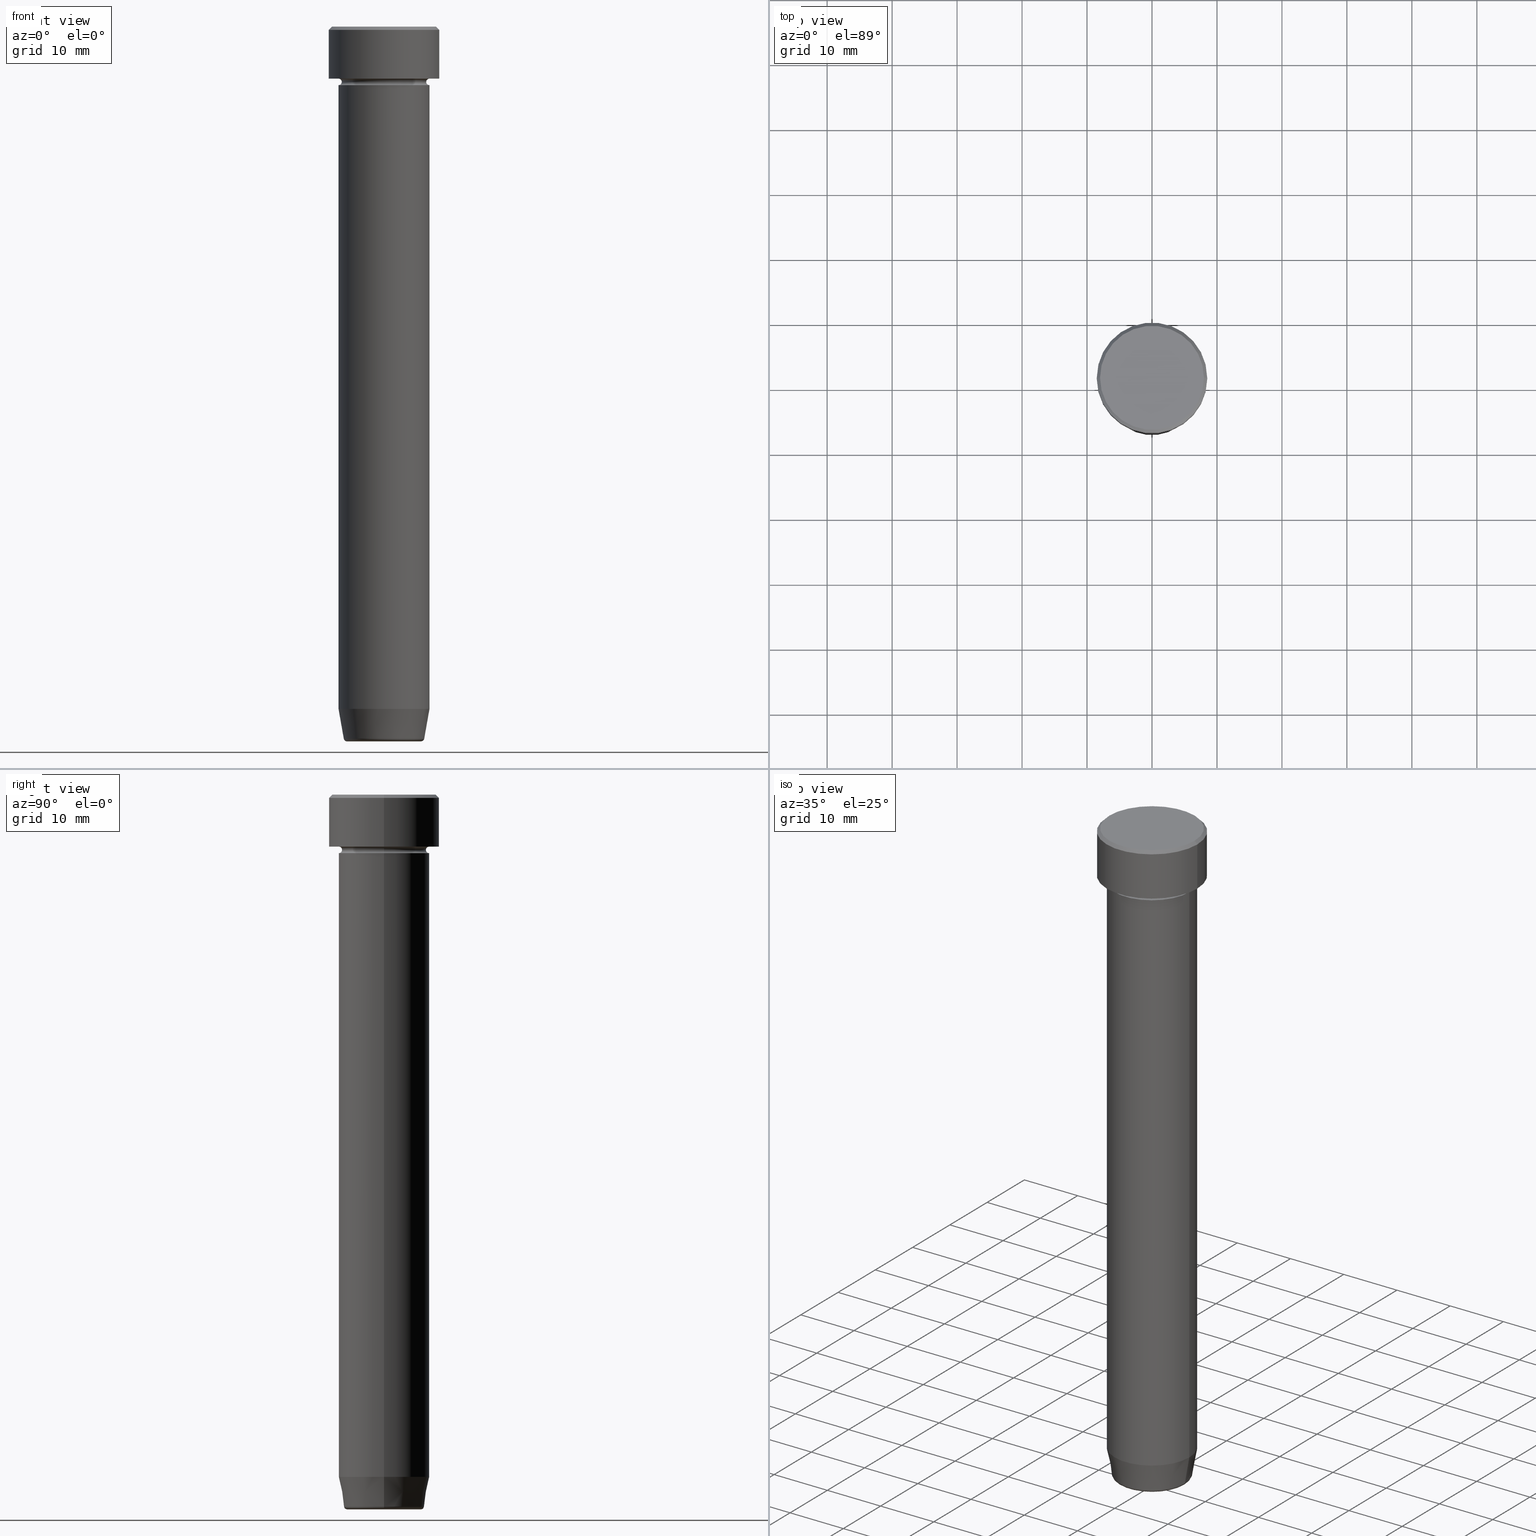
[diagram: canonical four-view strip — front | top / right | iso, engineering-drawing reading convention]
A machine part, canonical four-view strip (front | top / right | iso — engineering-drawing reading convention). The complete STEP part file that produces these views, byte-faithful:
ISO-10303-21;
HEADER;
FILE_DESCRIPTION (( 'STEP AP203' ),
    '1' );
FILE_NAME ('8b41.STEP',
    '2024-01-02T23:19:57',
    ( '' ),
    ( '' ),
    'SwSTEP 2.0',
    'SolidWorks 2019',
    '' );
FILE_SCHEMA (( 'CONFIG_CONTROL_DESIGN' ));
ENDSEC;

DATA;
#1 = FACE_OUTER_BOUND ( 'NONE', #95, .T. ) ;
#2 = ORIENTED_EDGE ( 'NONE', *, *, #486, .F. ) ;
#3 = EDGE_CURVE ( 'NONE', #456, #457, #16, .T. ) ;
#4 = ORIENTED_EDGE ( 'NONE', *, *, #570, .T. ) ;
#5 = DIRECTION ( 'NONE',  ( 0.7071067811865487940, 8.659560562354950115E-17, -0.7071067811865463515 ) ) ;
#6 = AXIS2_PLACEMENT_3D ( 'NONE', #571, #104, #108 ) ;
#7 = DIRECTION ( 'NONE',  ( -1.000000000000000000, 0.000000000000000000, 0.000000000000000000 ) ) ;
#8 = ORIENTED_EDGE ( 'NONE', *, *, #96, .F. ) ;
#9 = LINE ( 'NONE', #239, #18 ) ;
#10 = DIRECTION ( 'NONE',  ( 1.000000000000000000, 0.000000000000000000, 0.000000000000000000 ) ) ;
#11 = FACE_OUTER_BOUND ( 'NONE', #311, .T. ) ;
#12 = DIRECTION ( 'NONE',  ( -1.000000000000000000, 0.000000000000000000, 0.000000000000000000 ) ) ;
#13 = CARTESIAN_POINT ( 'NONE',  ( 0.000000000000000000, 0.000000000000000000, -109.9999999999999858 ) ) ;
#14 = EDGE_CURVE ( 'NONE', #87, #423, #515, .T. ) ;
#15 = DIRECTION ( 'NONE',  ( 1.000000000000000000, 0.000000000000000000, 0.000000000000000000 ) ) ;
#16 = CIRCLE ( 'NONE', #176, 6.999999999999999112 ) ;
#17 = EDGE_LOOP ( 'NONE', ( #340, #322, #542, #75 ) ) ;
#18 = VECTOR ( 'NONE', #145, 1000.000000000000000 ) ;
#19 = ORIENTED_EDGE ( 'NONE', *, *, #81, .T. ) ;
#20 = CARTESIAN_POINT ( 'NONE',  ( 0.000000000000000000, 0.000000000000000000, -109.4999999999999858 ) ) ;
#21 = DIRECTION ( 'NONE',  ( -1.000000000000000000, 0.000000000000000000, -0.000000000000000000 ) ) ;
#22 = FACE_OUTER_BOUND ( 'NONE', #452, .T. ) ;
#23 = ORIENTED_EDGE ( 'NONE', *, *, #181, .T. ) ;
#24 = EDGE_CURVE ( 'NONE', #410, #456, #347, .T. ) ;
#25 = ORIENTED_EDGE ( 'NONE', *, *, #62, .T. ) ;
#26 = ORIENTED_EDGE ( 'NONE', *, *, #96, .T. ) ;
#27 = AXIS2_PLACEMENT_3D ( 'NONE', #57, #301, #241 ) ;
#28 = ORIENTED_EDGE ( 'NONE', *, *, #274, .F. ) ;
#29 = VECTOR ( 'NONE', #513, 1000.000000000000000 ) ;
#30 = DIRECTION ( 'NONE',  ( 1.000000000000000000, 0.000000000000000000, 0.000000000000000000 ) ) ;
#31 = CARTESIAN_POINT ( 'NONE',  ( -7.000000000000000888, 0.000000000000000000, -8.000000000000000000 ) ) ;
#32 = ORIENTED_EDGE ( 'NONE', *, *, #473, .F. ) ;
#33 = ORIENTED_EDGE ( 'NONE', *, *, #246, .T. ) ;
#34 = DIRECTION ( 'NONE',  ( -0.000000000000000000, -0.000000000000000000, 1.000000000000000000 ) ) ;
#35 = EDGE_CURVE ( 'NONE', #590, #457, #519, .T. ) ;
#36 = CC_DESIGN_APPROVAL ( #596, ( #336 ) ) ;
#37 = PRODUCT ( '8b41', '8b41', '', ( #125 ) ) ;
#38 = CARTESIAN_POINT ( 'NONE',  ( -6.999999999999999112, 8.572527594031472204E-16, 0.000000000000000000 ) ) ;
#39 = SHAPE_DEFINITION_REPRESENTATION ( #422, #242 ) ;
#40 = AXIS2_PLACEMENT_3D ( 'NONE', #588, #371, #171 ) ;
#41 = ORIENTED_EDGE ( 'NONE', *, *, #226, .F. ) ;
#42 = AXIS2_PLACEMENT_3D ( 'NONE', #391, #244, #248 ) ;
#43 = DIRECTION ( 'NONE',  ( -0.000000000000000000, -0.000000000000000000, 1.000000000000000000 ) ) ;
#44 = CARTESIAN_POINT ( 'NONE',  ( 0.000000000000000000, 0.000000000000000000, 0.000000000000000000 ) ) ;
#45 = PRODUCT_DEFINITION ( 'NEZN�M�', '', #277, #288 ) ;
#46 = EDGE_LOOP ( 'NONE', ( #28, #33, #150, #58 ) ) ;
#47 = DIRECTION ( 'NONE',  ( 1.000000000000000000, 0.000000000000000000, 0.000000000000000000 ) ) ;
#48 = AXIS2_PLACEMENT_3D ( 'NONE', #367, #184, #53 ) ;
#49 = ORIENTED_EDGE ( 'NONE', *, *, #226, .T. ) ;
#50 = AXIS2_PLACEMENT_3D ( 'NONE', #112, #73, #30 ) ;
#51 = FACE_OUTER_BOUND ( 'NONE', #208, .T. ) ;
#52 = PERSON_AND_ORGANIZATION ( #286, #540 ) ;
#53 = DIRECTION ( 'NONE',  ( 1.000000000000000000, 0.000000000000000000, 0.000000000000000000 ) ) ;
#54 = DIRECTION ( 'NONE',  ( -0.1736481776669302479, 2.126576849575770682E-17, 0.9848077530122081313 ) ) ;
#55 = CARTESIAN_POINT ( 'NONE',  ( -8.500000000000000000, 1.040949779275250140E-15, 0.000000000000000000 ) ) ;
#56 = COORDINATED_UNIVERSAL_TIME_OFFSET ( 1, 0, .AHEAD. ) ;
#57 = CARTESIAN_POINT ( 'NONE',  ( 5.698815280869032662, 0.000000000000000000, -109.4999999999999858 ) ) ;
#58 = ORIENTED_EDGE ( 'NONE', *, *, #468, .F. ) ;
#59 = CLOSED_SHELL ( 'NONE', ( #494, #352, #506, #287, #216, #390, #189, #323 ) ) ;
#60 = CARTESIAN_POINT ( 'NONE',  ( -8.500000000000000000, 1.040949779275250140E-15, -0.4999999999999987232 ) ) ;
#61 = DIRECTION ( 'NONE',  ( -0.000000000000000000, -0.000000000000000000, 1.000000000000000000 ) ) ;
#62 = EDGE_CURVE ( 'NONE', #502, #312, #109, .T. ) ;
#63 = CARTESIAN_POINT ( 'NONE',  ( 0.000000000000000000, 0.000000000000000000, -8.500000000000000000 ) ) ;
#64 = DIRECTION ( 'NONE',  ( -0.000000000000000000, -0.000000000000000000, 1.000000000000000000 ) ) ;
#65 = DIRECTION ( 'NONE',  ( -1.000000000000000000, -1.224646799147351482E-16, 0.000000000000000000 ) ) ;
#66 = DIRECTION ( 'NONE',  ( -0.000000000000000000, -0.000000000000000000, 1.000000000000000000 ) ) ;
#67 = DATE_AND_TIME ( #520, #535 ) ;
#68 = VECTOR ( 'NONE', #219, 1000.000000000000000 ) ;
#69 = LOCAL_TIME ( 0, 19, 57.00000000000000000, #511 ) ;
#70 = ORIENTED_EDGE ( 'NONE', *, *, #246, .F. ) ;
#71 = EDGE_CURVE ( 'NONE', #87, #191, #236, .T. ) ;
#72 = DATE_AND_TIME ( #477, #69 ) ;
#73 = DIRECTION ( 'NONE',  ( -0.000000000000000000, -0.000000000000000000, 1.000000000000000000 ) ) ;
#74 = ORIENTED_EDGE ( 'NONE', *, *, #3, .T. ) ;
#75 = ORIENTED_EDGE ( 'NONE', *, *, #587, .F. ) ;
#76 = AXIS2_PLACEMENT_3D ( 'NONE', #297, #251, #565 ) ;
#77 = FACE_OUTER_BOUND ( 'NONE', #88, .T. ) ;
#78 = ORIENTED_EDGE ( 'NONE', *, *, #473, .T. ) ;
#79 = VECTOR ( 'NONE', #54, 1000.000000000000114 ) ;
#80 = APPROVAL_DATE_TIME ( #255, #596 ) ;
#81 = EDGE_CURVE ( 'NONE', #235, #555, #186, .T. ) ;
#82 = CARTESIAN_POINT ( 'NONE',  ( 0.000000000000000000, 0.000000000000000000, 0.000000000000000000 ) ) ;
#83 = AXIS2_PLACEMENT_3D ( 'NONE', #421, #380, #183 ) ;
#84 = VERTEX_POINT ( 'NONE', #60 ) ;
#85 = EDGE_CURVE ( 'NONE', #191, #114, #396, .T. ) ;
#86 = TOROIDAL_SURFACE ( 'NONE', #237, 7.000000000000000888, 0.5000000000000000000 ) ;
#87 = VERTEX_POINT ( 'NONE', #561 ) ;
#88 = EDGE_LOOP ( 'NONE', ( #25, #26, #117, #2 ) ) ;
#89 = CARTESIAN_POINT ( 'NONE',  ( 0.000000000000000000, 0.000000000000000000, -109.9999999999999858 ) ) ;
#90 = CIRCLE ( 'NONE', #218, 8.000000000000000000 ) ;
#91 = CIRCLE ( 'NONE', #497, 7.000000000000000888 ) ;
#92 = DIRECTION ( 'NONE',  ( 1.000000000000000000, 0.000000000000000000, 0.000000000000000000 ) ) ;
#93 = EDGE_CURVE ( 'NONE', #534, #84, #463, .T. ) ;
#94 = ORIENTED_EDGE ( 'NONE', *, *, #93, .T. ) ;
#95 = EDGE_LOOP ( 'NONE', ( #179, #32 ) ) ;
#96 = EDGE_CURVE ( 'NONE', #312, #423, #360, .T. ) ;
#97 = CIRCLE ( 'NONE', #445, 8.500000000000000000 ) ;
#98 = LINE ( 'NONE', #566, #306 ) ;
#99 = CONICAL_SURFACE ( 'NONE', #142, 6.118365096457673680, 0.1745329251994328645 ) ;
#100 = DIRECTION ( 'NONE',  ( -1.000000000000000000, 0.000000000000000000, 0.000000000000000000 ) ) ;
#101 = APPROVAL ( #393, 'NEUR�EN�' ) ;
#102 = CARTESIAN_POINT ( 'NONE',  ( 0.000000000000000000, 0.000000000000000000, -22.00000000000000000 ) ) ;
#103 = CC_DESIGN_PERSON_AND_ORGANIZATION_ASSIGNMENT ( #332, #339, ( #277 ) ) ;
#104 = DIRECTION ( 'NONE',  ( -0.000000000000000000, -0.000000000000000000, 1.000000000000000000 ) ) ;
#105 = FACE_OUTER_BOUND ( 'NONE', #294, .T. ) ;
#106 = EDGE_CURVE ( 'NONE', #315, #409, #90, .T. ) ;
#107 = COORDINATED_UNIVERSAL_TIME_OFFSET ( 1, 0, .AHEAD. ) ;
#108 = DIRECTION ( 'NONE',  ( 1.000000000000000000, 0.000000000000000000, 0.000000000000000000 ) ) ;
#109 = CIRCLE ( 'NONE', #48, 6.999999999999999112 ) ;
#110 = FACE_OUTER_BOUND ( 'NONE', #560, .T. ) ;
#111 = AXIS2_PLACEMENT_3D ( 'NONE', #141, #152, #195 ) ;
#112 = CARTESIAN_POINT ( 'NONE',  ( 0.000000000000000000, 0.000000000000000000, 0.000000000000000000 ) ) ;
#113 = CARTESIAN_POINT ( 'NONE',  ( -7.000000000000000888, 8.572527594031474176E-16, -9.000000000000001776 ) ) ;
#114 = VERTEX_POINT ( 'NONE', #119 ) ;
#115 = DIRECTION ( 'NONE',  ( -1.000000000000000000, 0.000000000000000000, -0.000000000000000000 ) ) ;
#116 = DIRECTION ( 'NONE',  ( 1.000000000000000000, 0.000000000000000000, 0.000000000000000000 ) ) ;
#117 = ORIENTED_EDGE ( 'NONE', *, *, #232, .F. ) ;
#118 = EDGE_CURVE ( 'NONE', #409, #315, #313, .T. ) ;
#119 = CARTESIAN_POINT ( 'NONE',  ( 7.000000000000000000, 0.000000000000000000, -9.000000000000001776 ) ) ;
#120 = AXIS2_PLACEMENT_3D ( 'NONE', #532, #482, #199 ) ;
#121 = ADVANCED_FACE ( 'NONE', ( #77 ), #414, .T. ) ;
#122 = ORIENTED_EDGE ( 'NONE', *, *, #202, .F. ) ;
#123 = CIRCLE ( 'NONE', #563, 7.000000000000000888 ) ;
#124 = ORIENTED_EDGE ( 'NONE', *, *, #62, .F. ) ;
#125 = MECHANICAL_CONTEXT ( 'NONE', #450, 'mechanical' ) ;
#126 = ADVANCED_FACE ( 'NONE', ( #545 ), #268, .T. ) ;
#127 = DIRECTION ( 'NONE',  ( -0.000000000000000000, -0.000000000000000000, 1.000000000000000000 ) ) ;
#128 = LINE ( 'NONE', #327, #79 ) ;
#129 = EDGE_LOOP ( 'NONE', ( #270, #490, #320, #569 ) ) ;
#130 = CARTESIAN_POINT ( 'NONE',  ( 5.698815280869032662, 0.000000000000000000, -109.9999999999999858 ) ) ;
#131 = DIRECTION ( 'NONE',  ( -0.000000000000000000, -0.000000000000000000, 1.000000000000000000 ) ) ;
#132 = CARTESIAN_POINT ( 'NONE',  ( 0.000000000000000000, 0.000000000000000000, -8.500000000000000000 ) ) ;
#133 = PLANE ( 'NONE',  #516 ) ;
#134 = CC_DESIGN_PERSON_AND_ORGANIZATION_ASSIGNMENT ( #180, #382, ( #37 ) ) ;
#135 = DIRECTION ( 'NONE',  ( -0.000000000000000000, -0.000000000000000000, 1.000000000000000000 ) ) ;
#136 = CARTESIAN_POINT ( 'NONE',  ( 7.000000000000000888, 8.572527594031474176E-16, -8.500000000000000000 ) ) ;
#137 = LINE ( 'NONE', #337, #29 ) ;
#138 = CARTESIAN_POINT ( 'NONE',  ( 0.000000000000000000, 0.000000000000000000, 0.000000000000000000 ) ) ;
#139 = DIRECTION ( 'NONE',  ( -1.224646799147353207E-16, 1.000000000000000000, 0.000000000000000000 ) ) ;
#140 = CIRCLE ( 'NONE', #83, 0.5000000000000004441 ) ;
#141 = CARTESIAN_POINT ( 'NONE',  ( 0.000000000000000000, 0.000000000000000000, -8.500000000000000000 ) ) ;
#142 = AXIS2_PLACEMENT_3D ( 'NONE', #384, #285, #470 ) ;
#143 = CARTESIAN_POINT ( 'NONE',  ( -7.000000000000000888, 8.572527594031474176E-16, -8.500000000000000000 ) ) ;
#144 = PERSON_AND_ORGANIZATION_ROLE ( 'creator' ) ;
#145 = DIRECTION ( 'NONE',  ( -0.000000000000000000, -0.000000000000000000, 1.000000000000000000 ) ) ;
#146 = FACE_OUTER_BOUND ( 'NONE', #579, .T. ) ;
#147 = CYLINDRICAL_SURFACE ( 'NONE', #6, 6.999999999999999112 ) ;
#148 = MANIFOLD_SOLID_BREP ( 'Zaoblit4', #59 ) ;
#149 = EDGE_CURVE ( 'NONE', #163, #207, #140, .T. ) ;
#150 = ORIENTED_EDGE ( 'NONE', *, *, #386, .T. ) ;
#151 = CARTESIAN_POINT ( 'NONE',  ( 0.000000000000000000, 0.000000000000000000, -8.000000000000000000 ) ) ;
#152 = DIRECTION ( 'NONE',  ( 0.000000000000000000, 0.000000000000000000, -1.000000000000000000 ) ) ;
#153 = DIRECTION ( 'NONE',  ( 1.000000000000000000, 0.000000000000000000, 0.000000000000000000 ) ) ;
#154 = CIRCLE ( 'NONE', #539, 0.5000000000000004441 ) ;
#155 = EDGE_LOOP ( 'NONE', ( #426, #78, #19, #385 ) ) ;
#156 = LINE ( 'NONE', #170, #291 ) ;
#157 = ORIENTED_EDGE ( 'NONE', *, *, #411, .T. ) ;
#158 = ORIENTED_EDGE ( 'NONE', *, *, #372, .F. ) ;
#159 = EDGE_CURVE ( 'NONE', #410, #590, #427, .T. ) ;
#160 = ORIENTED_EDGE ( 'NONE', *, *, #169, .T. ) ;
#161 = PLANE ( 'NONE',  #321 ) ;
#162 = DIRECTION ( 'NONE',  ( -0.000000000000000000, -0.000000000000000000, 1.000000000000000000 ) ) ;
#163 = VERTEX_POINT ( 'NONE', #383 ) ;
#164 = EDGE_LOOP ( 'NONE', ( #8, #328, #449, #512 ) ) ;
#165 = CARTESIAN_POINT ( 'NONE',  ( 0.000000000000000000, 0.000000000000000000, -0.4999999999999987232 ) ) ;
#166 = TOROIDAL_SURFACE ( 'NONE', #507, 7.000000000000000888, 0.5000000000000000000 ) ;
#167 = APPLICATION_PROTOCOL_DEFINITION ( 'international standard', 'config_control_design', 1994, #498 ) ;
#168 = ORIENTED_EDGE ( 'NONE', *, *, #14, .F. ) ;
#169 = EDGE_CURVE ( 'NONE', #457, #456, #210, .T. ) ;
#170 = CARTESIAN_POINT ( 'NONE',  ( 6.118365096457673680, 0.000000000000000000, -109.9999999999999858 ) ) ;
#171 = DIRECTION ( 'NONE',  ( 1.000000000000000000, 0.000000000000000000, 0.000000000000000000 ) ) ;
#172 = ORIENTED_EDGE ( 'NONE', *, *, #106, .F. ) ;
#173 = CARTESIAN_POINT ( 'NONE',  ( 6.999999999999999112, 0.000000000000000000, -22.00000000000000000 ) ) ;
#174 = CC_DESIGN_PERSON_AND_ORGANIZATION_ASSIGNMENT ( #395, #346, ( #336 ) ) ;
#175 = DIRECTION ( 'NONE',  ( -0.000000000000000000, -0.000000000000000000, 1.000000000000000000 ) ) ;
#176 = AXIS2_PLACEMENT_3D ( 'NONE', #356, #573, #200 ) ;
#177 = APPLICATION_PROTOCOL_DEFINITION ( 'international standard', 'config_control_design', 1994, #450 ) ;
#178 = AXIS2_PLACEMENT_3D ( 'NONE', #280, #552, #229 ) ;
#179 = ORIENTED_EDGE ( 'NONE', *, *, #575, .F. ) ;
#180 = PERSON_AND_ORGANIZATION ( #286, #540 ) ;
#181 = EDGE_CURVE ( 'NONE', #370, #222, #290, .T. ) ;
#182 = DATE_AND_TIME ( #233, #217 ) ;
#183 = DIRECTION ( 'NONE',  ( -1.000000000000000000, 1.224646799147351482E-16, 0.000000000000000000 ) ) ;
#184 = DIRECTION ( 'NONE',  ( -0.000000000000000000, -0.000000000000000000, 1.000000000000000000 ) ) ;
#185 = DIRECTION ( 'NONE',  ( -1.000000000000000000, 0.000000000000000000, 0.000000000000000000 ) ) ;
#186 = LINE ( 'NONE', #289, #227 ) ;
#187 = VECTOR ( 'NONE', #162, 1000.000000000000000 ) ;
#188 = TOROIDAL_SURFACE ( 'NONE', #111, 7.000000000000000888, 0.5000000000000000000 ) ;
#189 = ADVANCED_FACE ( 'NONE', ( #22 ), #351, .F. ) ;
#190 = CARTESIAN_POINT ( 'NONE',  ( 0.000000000000000000, 8.500000000000000000, -8.000000000000000000 ) ) ;
#191 = VERTEX_POINT ( 'NONE', #524 ) ;
#192 = ORIENTED_EDGE ( 'NONE', *, *, #363, .F. ) ;
#193 = APPROVAL_DATE_TIME ( #72, #431 ) ;
#194 = CYLINDRICAL_SURFACE ( 'NONE', #42, 8.500000000000000000 ) ;
#195 = DIRECTION ( 'NONE',  ( -1.000000000000000000, 0.000000000000000000, 0.000000000000000000 ) ) ;
#196 = DIRECTION ( 'NONE',  ( -0.000000000000000000, -0.000000000000000000, 1.000000000000000000 ) ) ;
#197 = SECURITY_CLASSIFICATION_LEVEL ( 'unclassified' ) ;
#198 = DIRECTION ( 'NONE',  ( 1.000000000000000000, 0.000000000000000000, 0.000000000000000000 ) ) ;
#199 = DIRECTION ( 'NONE',  ( 1.000000000000000000, 0.000000000000000000, 0.000000000000000000 ) ) ;
#200 = DIRECTION ( 'NONE',  ( 1.000000000000000000, 0.000000000000000000, 0.000000000000000000 ) ) ;
#201 = DIRECTION ( 'NONE',  ( 1.000000000000000000, 0.000000000000000000, 0.000000000000000000 ) ) ;
#202 = EDGE_CURVE ( 'NONE', #84, #555, #97, .T. ) ;
#203 = ORIENTED_EDGE ( 'NONE', *, *, #71, .F. ) ;
#204 = DIRECTION ( 'NONE',  ( 0.000000000000000000, 0.000000000000000000, -1.000000000000000000 ) ) ;
#205 = DIRECTION ( 'NONE',  ( 1.000000000000000000, 0.000000000000000000, 0.000000000000000000 ) ) ;
#206 = CC_DESIGN_SECURITY_CLASSIFICATION ( #336, ( #277 ) ) ;
#207 = VERTEX_POINT ( 'NONE', #257 ) ;
#208 = EDGE_LOOP ( 'NONE', ( #192, #405, #374, #536 ) ) ;
#209 = FACE_OUTER_BOUND ( 'NONE', #164, .T. ) ;
#210 = CIRCLE ( 'NONE', #550, 6.999999999999999112 ) ;
#211 = AXIS2_PLACEMENT_3D ( 'NONE', #413, #406, #548 ) ;
#212 = ADVANCED_FACE ( 'NONE', ( #398 ), #341, .T. ) ;
#213 =( GEOMETRIC_REPRESENTATION_CONTEXT ( 3 ) GLOBAL_UNCERTAINTY_ASSIGNED_CONTEXT ( ( #572 ) ) GLOBAL_UNIT_ASSIGNED_CONTEXT ( ( #581, #263, #368 ) ) REPRESENTATION_CONTEXT ( 'NONE', 'WORKASPACE' ) );
#214 = CARTESIAN_POINT ( 'NONE',  ( 0.000000000000000000, 0.000000000000000000, 0.000000000000000000 ) ) ;
#215 = FACE_OUTER_BOUND ( 'NONE', #538, .T. ) ;
#216 = ADVANCED_FACE ( 'NONE', ( #105 ), #443, .T. ) ;
#217 = LOCAL_TIME ( 0, 19, 57.00000000000000000, #56 ) ;
#218 = AXIS2_PLACEMENT_3D ( 'NONE', #366, #541, #537 ) ;
#219 = DIRECTION ( 'NONE',  ( -0.000000000000000000, -0.000000000000000000, 1.000000000000000000 ) ) ;
#220 = AXIS2_PLACEMENT_3D ( 'NONE', #20, #528, #201 ) ;
#221 = CC_DESIGN_PERSON_AND_ORGANIZATION_ASSIGNMENT ( #434, #144, ( #45 ) ) ;
#222 = VERTEX_POINT ( 'NONE', #489 ) ;
#223 = ORIENTED_EDGE ( 'NONE', *, *, #181, .F. ) ;
#224 = DIRECTION ( 'NONE',  ( -0.000000000000000000, -0.000000000000000000, 1.000000000000000000 ) ) ;
#225 = CARTESIAN_POINT ( 'NONE',  ( 0.000000000000000000, 0.000000000000000000, -8.000000000000000000 ) ) ;
#226 = EDGE_CURVE ( 'NONE', #163, #370, #418, .T. ) ;
#227 = VECTOR ( 'NONE', #387, 1000.000000000000000 ) ;
#228 = AXIS2_PLACEMENT_3D ( 'NONE', #379, #131, #334 ) ;
#229 = DIRECTION ( 'NONE',  ( 0.000000000000000000, 0.000000000000000000, -1.000000000000000000 ) ) ;
#230 = PERSON_AND_ORGANIZATION_ROLE ( 'creator' ) ;
#231 = FACE_OUTER_BOUND ( 'NONE', #46, .T. ) ;
#232 = EDGE_CURVE ( 'NONE', #114, #423, #342, .T. ) ;
#233 = CALENDAR_DATE ( 2024, 3, 1 ) ;
#234 = CARTESIAN_POINT ( 'NONE',  ( 7.000000000000000888, 0.000000000000000000, -8.500000000000000000 ) ) ;
#235 = VERTEX_POINT ( 'NONE', #514 ) ;
#236 = CIRCLE ( 'NONE', #330, 6.500000000000000888 ) ;
#237 = AXIS2_PLACEMENT_3D ( 'NONE', #432, #64, #10 ) ;
#238 = CIRCLE ( 'NONE', #211, 8.500000000000000000 ) ;
#239 = CARTESIAN_POINT ( 'NONE',  ( 6.999999999999999112, 0.000000000000000000, 0.000000000000000000 ) ) ;
#240 = CARTESIAN_POINT ( 'NONE',  ( -8.500000000000000000, 1.040949779275250140E-15, -8.000000000000000000 ) ) ;
#241 = DIRECTION ( 'NONE',  ( 0.000000000000000000, 0.000000000000000000, -1.000000000000000000 ) ) ;
#242 = ADVANCED_BREP_SHAPE_REPRESENTATION ( '8b41', ( #543, #148, #389 ), #213 ) ;
#243 = FACE_OUTER_BOUND ( 'NONE', #547, .T. ) ;
#244 = DIRECTION ( 'NONE',  ( -0.000000000000000000, -0.000000000000000000, 1.000000000000000000 ) ) ;
#245 = CC_DESIGN_APPROVAL ( #101, ( #277 ) ) ;
#246 = EDGE_CURVE ( 'NONE', #191, #87, #446, .T. ) ;
#247 = CLOSED_SHELL ( 'NONE', ( #126, #533, #256, #121, #296, #308, #562, #554, #343, #424, #501, #401, #212 ) ) ;
#248 = DIRECTION ( 'NONE',  ( 1.000000000000000000, 0.000000000000000000, 0.000000000000000000 ) ) ;
#249 = CIRCLE ( 'NONE', #120, 6.999999999999999112 ) ;
#250 = AXIS2_PLACEMENT_3D ( 'NONE', #165, #267, #261 ) ;
#251 = DIRECTION ( 'NONE',  ( 0.000000000000000000, 0.000000000000000000, -1.000000000000000000 ) ) ;
#252 = DIRECTION ( 'NONE',  ( 0.000000000000000000, 0.000000000000000000, -1.000000000000000000 ) ) ;
#253 = DIRECTION ( 'NONE',  ( 0.000000000000000000, -0.000000000000000000, 1.000000000000000000 ) ) ;
#254 = ORIENTED_EDGE ( 'NONE', *, *, #468, .T. ) ;
#255 = DATE_AND_TIME ( #493, #302 ) ;
#256 = ADVANCED_FACE ( 'NONE', ( #110 ), #86, .F. ) ;
#257 = CARTESIAN_POINT ( 'NONE',  ( -6.191219157375138060, 8.077292158965354448E-16, -109.5868240888334384 ) ) ;
#258 = EDGE_LOOP ( 'NONE', ( #168, #70, #525, #465 ) ) ;
#259 = ORIENTED_EDGE ( 'NONE', *, *, #85, .F. ) ;
#260 = AXIS2_PLACEMENT_3D ( 'NONE', #574, #338, #153 ) ;
#261 = DIRECTION ( 'NONE',  ( 1.000000000000000000, 0.000000000000000000, 0.000000000000000000 ) ) ;
#262 = ORIENTED_EDGE ( 'NONE', *, *, #575, .T. ) ;
#263 =( NAMED_UNIT ( * ) PLANE_ANGLE_UNIT ( ) SI_UNIT ( $, .RADIAN. ) );
#264 = CARTESIAN_POINT ( 'NONE',  ( 0.000000000000000000, 0.000000000000000000, 0.000000000000000000 ) ) ;
#265 = EDGE_CURVE ( 'NONE', #207, #222, #551, .T. ) ;
#266 = ORIENTED_EDGE ( 'NONE', *, *, #35, .F. ) ;
#267 = DIRECTION ( 'NONE',  ( 0.000000000000000000, 0.000000000000000000, -1.000000000000000000 ) ) ;
#268 = CONICAL_SURFACE ( 'NONE', #454, 8.000000000000000000, 0.7853981633974500554 ) ;
#269 = AXIS2_PLACEMENT_3D ( 'NONE', #89, #556, #47 ) ;
#270 = ORIENTED_EDGE ( 'NONE', *, *, #510, .F. ) ;
#271 = FACE_OUTER_BOUND ( 'NONE', #580, .T. ) ;
#272 = APPROVAL_ROLE ( '' ) ;
#273 = CARTESIAN_POINT ( 'NONE',  ( -6.999999999999999112, 8.572527594031472204E-16, -22.00000000000000000 ) ) ;
#274 = EDGE_CURVE ( 'NONE', #191, #523, #154, .T. ) ;
#275 = ORIENTED_EDGE ( 'NONE', *, *, #570, .F. ) ;
#276 = APPROVAL_ROLE ( '' ) ;
#277 = PRODUCT_DEFINITION_FORMATION_WITH_SPECIFIED_SOURCE ( 'LIBOVOLN�', '', #37, .NOT_KNOWN. ) ;
#278 = APPROVAL_DATE_TIME ( #182, #101 ) ;
#279 = DIRECTION ( 'NONE',  ( 0.000000000000000000, 0.000000000000000000, -1.000000000000000000 ) ) ;
#280 = CARTESIAN_POINT ( 'NONE',  ( -7.000000000000000888, 0.000000000000000000, -8.500000000000000000 ) ) ;
#281 = AXIS2_PLACEMENT_3D ( 'NONE', #589, #357, #464 ) ;
#282 = APPROVAL_PERSON_ORGANIZATION ( #318, #431, #276 ) ;
#283 = ORIENTED_EDGE ( 'NONE', *, *, #453, .T. ) ;
#284 = PERSON_AND_ORGANIZATION ( #286, #540 ) ;
#285 = DIRECTION ( 'NONE',  ( -0.000000000000000000, -0.000000000000000000, 1.000000000000000000 ) ) ;
#286 = PERSON ( 'NEUR�EN�', 'NEUR�EN�', 'NEUR�EN�', ('NEUR�EN�'), ('NEUR�EN�'), ('NEUR�EN�') ) ;
#287 = ADVANCED_FACE ( 'NONE', ( #243 ), #435, .F. ) ;
#288 = DESIGN_CONTEXT ( 'detailed design', #498, 'design' ) ;
#289 = CARTESIAN_POINT ( 'NONE',  ( 8.500000000000000000, 0.000000000000000000, 0.000000000000000000 ) ) ;
#290 = CIRCLE ( 'NONE', #27, 0.5000000000000004441 ) ;
#291 = VECTOR ( 'NONE', #495, 1000.000000000000114 ) ;
#292 = DIRECTION ( 'NONE',  ( -0.000000000000000000, -0.000000000000000000, 1.000000000000000000 ) ) ;
#293 = DIRECTION ( 'NONE',  ( -0.000000000000000000, -0.000000000000000000, 1.000000000000000000 ) ) ;
#294 = EDGE_LOOP ( 'NONE', ( #491, #546, #492, #529 ) ) ;
#295 = DIRECTION ( 'NONE',  ( 0.000000000000000000, 0.000000000000000000, -1.000000000000000000 ) ) ;
#296 = ADVANCED_FACE ( 'NONE', ( #146 ), #304, .T. ) ;
#297 = CARTESIAN_POINT ( 'NONE',  ( 0.000000000000000000, 0.000000000000000000, 0.000000000000000000 ) ) ;
#298 = DIRECTION ( 'NONE',  ( -0.000000000000000000, -0.000000000000000000, 1.000000000000000000 ) ) ;
#299 = CARTESIAN_POINT ( 'NONE',  ( 0.000000000000000000, 6.999999999999999112, -22.00000000000000000 ) ) ;
#300 = FACE_OUTER_BOUND ( 'NONE', #369, .T. ) ;
#301 = DIRECTION ( 'NONE',  ( 0.000000000000000000, -1.000000000000000000, 0.000000000000000000 ) ) ;
#302 = LOCAL_TIME ( 0, 19, 57.00000000000000000, #460 ) ;
#303 = ORIENTED_EDGE ( 'NONE', *, *, #316, .F. ) ;
#304 = CYLINDRICAL_SURFACE ( 'NONE', #50, 8.500000000000000000 ) ;
#305 = VECTOR ( 'NONE', #298, 1000.000000000000000 ) ;
#306 = VECTOR ( 'NONE', #5, 1000.000000000000000 ) ;
#307 = CARTESIAN_POINT ( 'NONE',  ( 0.000000000000000000, 0.000000000000000000, -0.4999999999999987232 ) ) ;
#308 = ADVANCED_FACE ( 'NONE', ( #215 ), #161, .T. ) ;
#309 = DIRECTION ( 'NONE',  ( 0.000000000000000000, 0.000000000000000000, -1.000000000000000000 ) ) ;
#310 = DIRECTION ( 'NONE',  ( 0.000000000000000000, 0.000000000000000000, -1.000000000000000000 ) ) ;
#311 = EDGE_LOOP ( 'NONE', ( #41, #462, #158, #223 ) ) ;
#312 = VERTEX_POINT ( 'NONE', #319 ) ;
#313 = CIRCLE ( 'NONE', #526, 8.000000000000000000 ) ;
#314 = AXIS2_PLACEMENT_3D ( 'NONE', #63, #196, #394 ) ;
#315 = VERTEX_POINT ( 'NONE', #584 ) ;
#316 = EDGE_CURVE ( 'NONE', #597, #523, #91, .T. ) ;
#317 = DIRECTION ( 'NONE',  ( 1.000000000000000000, 0.000000000000000000, 0.000000000000000000 ) ) ;
#318 = PERSON_AND_ORGANIZATION ( #286, #540 ) ;
#319 = CARTESIAN_POINT ( 'NONE',  ( -6.999999999999999112, 8.572527594031472204E-16, -22.00000000000000000 ) ) ;
#320 = ORIENTED_EDGE ( 'NONE', *, *, #447, .T. ) ;
#321 = AXIS2_PLACEMENT_3D ( 'NONE', #299, #252, #21 ) ;
#322 = ORIENTED_EDGE ( 'NONE', *, *, #363, .T. ) ;
#323 = ADVANCED_FACE ( 'NONE', ( #373 ), #504, .T. ) ;
#324 = CYLINDRICAL_SURFACE ( 'NONE', #527, 6.999999999999999112 ) ;
#325 = ORIENTED_EDGE ( 'NONE', *, *, #386, .F. ) ;
#326 = CARTESIAN_POINT ( 'NONE',  ( 0.000000000000000000, 0.000000000000000000, -104.9999999999999858 ) ) ;
#327 = CARTESIAN_POINT ( 'NONE',  ( -6.118365096457673680, 7.492836231391777609E-16, -109.9999999999999858 ) ) ;
#328 = ORIENTED_EDGE ( 'NONE', *, *, #521, .T. ) ;
#329 = DIRECTION ( 'NONE',  ( 1.000000000000000000, 0.000000000000000000, 0.000000000000000000 ) ) ;
#330 = AXIS2_PLACEMENT_3D ( 'NONE', #132, #127, #558 ) ;
#331 = CIRCLE ( 'NONE', #178, 0.5000000000000004441 ) ;
#332 = PERSON_AND_ORGANIZATION ( #286, #540 ) ;
#333 = CARTESIAN_POINT ( 'NONE',  ( 8.500000000000000000, 0.000000000000000000, -0.4999999999999987232 ) ) ;
#334 = DIRECTION ( 'NONE',  ( 1.000000000000000000, 0.000000000000000000, 0.000000000000000000 ) ) ;
#335 = CARTESIAN_POINT ( 'NONE',  ( 7.000000000000000888, 8.572527594031474176E-16, -8.000000000000000000 ) ) ;
#336 = SECURITY_CLASSIFICATION ( '', '', #197 ) ;
#337 = CARTESIAN_POINT ( 'NONE',  ( -8.000000000000000000, 0.000000000000000000, 0.000000000000000000 ) ) ;
#338 = DIRECTION ( 'NONE',  ( -0.000000000000000000, -0.000000000000000000, 1.000000000000000000 ) ) ;
#339 = PERSON_AND_ORGANIZATION_ROLE ( 'design_supplier' ) ;
#340 = ORIENTED_EDGE ( 'NONE', *, *, #372, .T. ) ;
#341 = CONICAL_SURFACE ( 'NONE', #76, 8.000000000000000000, 0.7853981633974500554 ) ;
#342 = CIRCLE ( 'NONE', #260, 7.000000000000000000 ) ;
#343 = ADVANCED_FACE ( 'NONE', ( #583, #1 ), #133, .T. ) ;
#344 = CARTESIAN_POINT ( 'NONE',  ( -6.999999999999999112, 8.572527594031472204E-16, -104.9999999999999858 ) ) ;
#345 = PLANE ( 'NONE',  #455 ) ;
#346 = PERSON_AND_ORGANIZATION_ROLE ( 'classification_officer' ) ;
#347 = LINE ( 'NONE', #522, #305 ) ;
#348 = FACE_OUTER_BOUND ( 'NONE', #258, .T. ) ;
#349 = APPROVAL_STATUS ( 'not_yet_approved' ) ;
#350 = DIRECTION ( 'NONE',  ( -1.000000000000000000, 1.224646799147351482E-16, 0.000000000000000000 ) ) ;
#351 = PLANE ( 'NONE',  #376 ) ;
#352 = ADVANCED_FACE ( 'NONE', ( #416 ), #397, .T. ) ;
#353 = AXIS2_PLACEMENT_3D ( 'NONE', #599, #43, #329 ) ;
#354 = CARTESIAN_POINT ( 'NONE',  ( 0.000000000000000000, 7.347880794884118356E-15, -109.9999999999999858 ) ) ;
#355 = CARTESIAN_POINT ( 'NONE',  ( 0.000000000000000000, 0.000000000000000000, -109.9999999999999858 ) ) ;
#356 = CARTESIAN_POINT ( 'NONE',  ( 0.000000000000000000, 0.000000000000000000, -22.00000000000000000 ) ) ;
#357 = DIRECTION ( 'NONE',  ( -0.000000000000000000, -0.000000000000000000, 1.000000000000000000 ) ) ;
#358 = ORIENTED_EDGE ( 'NONE', *, *, #510, .T. ) ;
#359 = ORIENTED_EDGE ( 'NONE', *, *, #81, .F. ) ;
#360 = LINE ( 'NONE', #38, #68 ) ;
#361 = FACE_OUTER_BOUND ( 'NONE', #440, .T. ) ;
#362 = ORIENTED_EDGE ( 'NONE', *, *, #24, .T. ) ;
#363 = EDGE_CURVE ( 'NONE', #207, #410, #128, .T. ) ;
#364 = AXIS2_PLACEMENT_3D ( 'NONE', #234, #474, #279 ) ;
#365 = CIRCLE ( 'NONE', #228, 7.000000000000000000 ) ;
#366 = CARTESIAN_POINT ( 'NONE',  ( 0.000000000000000000, 0.000000000000000000, 0.000000000000000000 ) ) ;
#367 = CARTESIAN_POINT ( 'NONE',  ( 0.000000000000000000, 0.000000000000000000, -22.00000000000000000 ) ) ;
#368 =( NAMED_UNIT ( * ) SI_UNIT ( $, .STERADIAN. ) SOLID_ANGLE_UNIT ( ) );
#369 = EDGE_LOOP ( 'NONE', ( #448, #438, #303, #325 ) ) ;
#370 = VERTEX_POINT ( 'NONE', #130 ) ;
#371 = DIRECTION ( 'NONE',  ( -0.000000000000000000, -0.000000000000000000, 1.000000000000000000 ) ) ;
#372 = EDGE_CURVE ( 'NONE', #222, #207, #419, .T. ) ;
#373 = FACE_OUTER_BOUND ( 'NONE', #593, .T. ) ;
#374 = ORIENTED_EDGE ( 'NONE', *, *, #587, .T. ) ;
#375 = CARTESIAN_POINT ( 'NONE',  ( 6.999999999999999112, 0.000000000000000000, -22.00000000000000000 ) ) ;
#376 = AXIS2_PLACEMENT_3D ( 'NONE', #354, #253, #436 ) ;
#377 = CIRCLE ( 'NONE', #250, 8.500000000000000000 ) ;
#378 = EDGE_LOOP ( 'NONE', ( #461, #254 ) ) ;
#379 = CARTESIAN_POINT ( 'NONE',  ( 0.000000000000000000, 0.000000000000000000, -9.000000000000001776 ) ) ;
#380 = DIRECTION ( 'NONE',  ( 1.224646799147353207E-16, 1.000000000000000000, 0.000000000000000000 ) ) ;
#381 = DIRECTION ( 'NONE',  ( 0.000000000000000000, 0.000000000000000000, -1.000000000000000000 ) ) ;
#382 = PERSON_AND_ORGANIZATION_ROLE ( 'design_owner' ) ;
#383 = CARTESIAN_POINT ( 'NONE',  ( -5.698815280869032662, 7.280546308273760746E-16, -109.9999999999999858 ) ) ;
#384 = CARTESIAN_POINT ( 'NONE',  ( 0.000000000000000000, 0.000000000000000000, -109.9999999999999858 ) ) ;
#385 = ORIENTED_EDGE ( 'NONE', *, *, #594, .T. ) ;
#386 = EDGE_CURVE ( 'NONE', #87, #597, #331, .T. ) ;
#387 = DIRECTION ( 'NONE',  ( -0.000000000000000000, -0.000000000000000000, 1.000000000000000000 ) ) ;
#388 = AXIS2_PLACEMENT_3D ( 'NONE', #151, #135, #15 ) ;
#389 = AXIS2_PLACEMENT_3D ( 'NONE', #44, #592, #553 ) ;
#390 = ADVANCED_FACE ( 'NONE', ( #51 ), #99, .T. ) ;
#391 = CARTESIAN_POINT ( 'NONE',  ( 0.000000000000000000, 0.000000000000000000, 0.000000000000000000 ) ) ;
#392 = CARTESIAN_POINT ( 'NONE',  ( -8.000000000000000000, 0.000000000000000000, 0.000000000000000000 ) ) ;
#393 = APPROVAL_STATUS ( 'not_yet_approved' ) ;
#394 = DIRECTION ( 'NONE',  ( 1.000000000000000000, 0.000000000000000000, 0.000000000000000000 ) ) ;
#395 = PERSON_AND_ORGANIZATION ( #286, #540 ) ;
#396 = CIRCLE ( 'NONE', #364, 0.5000000000000004441 ) ;
#397 = CONICAL_SURFACE ( 'NONE', #269, 6.118365096457673680, 0.1745329251994328645 ) ;
#398 = FACE_OUTER_BOUND ( 'NONE', #129, .T. ) ;
#399 = DIRECTION ( 'NONE',  ( 1.224646799147353207E-16, 1.000000000000000000, 0.000000000000000000 ) ) ;
#400 = DATE_TIME_ROLE ( 'creation_date' ) ;
#401 = ADVANCED_FACE ( 'NONE', ( #231 ), #188, .F. ) ;
#402 = CARTESIAN_POINT ( 'NONE',  ( 0.000000000000000000, 0.000000000000000000, -109.5868240888334384 ) ) ;
#403 = DIRECTION ( 'NONE',  ( 1.000000000000000000, 0.000000000000000000, 0.000000000000000000 ) ) ;
#404 = COORDINATED_UNIVERSAL_TIME_OFFSET ( 1, 0, .AHEAD. ) ;
#405 = ORIENTED_EDGE ( 'NONE', *, *, #265, .T. ) ;
#406 = DIRECTION ( 'NONE',  ( -0.000000000000000000, -0.000000000000000000, 1.000000000000000000 ) ) ;
#407 = DIRECTION ( 'NONE',  ( -0.000000000000000000, -0.000000000000000000, 1.000000000000000000 ) ) ;
#408 = ORIENTED_EDGE ( 'NONE', *, *, #149, .F. ) ;
#409 = VERTEX_POINT ( 'NONE', #392 ) ;
#410 = VERTEX_POINT ( 'NONE', #344 ) ;
#411 = EDGE_CURVE ( 'NONE', #590, #410, #249, .T. ) ;
#412 = CIRCLE ( 'NONE', #476, 6.999999999999999112 ) ;
#413 = CARTESIAN_POINT ( 'NONE',  ( 0.000000000000000000, 0.000000000000000000, -8.000000000000000000 ) ) ;
#414 = CYLINDRICAL_SURFACE ( 'NONE', #40, 6.999999999999999112 ) ;
#415 = CC_DESIGN_DATE_AND_TIME_ASSIGNMENT ( #518, #430, ( #336 ) ) ;
#416 = FACE_OUTER_BOUND ( 'NONE', #17, .T. ) ;
#417 = DIRECTION ( 'NONE',  ( 1.000000000000000000, 0.000000000000000000, 0.000000000000000000 ) ) ;
#418 = CIRCLE ( 'NONE', #568, 5.698815280869032662 ) ;
#419 = CIRCLE ( 'NONE', #595, 6.191219157375138060 ) ;
#420 = CARTESIAN_POINT ( 'NONE',  ( 0.000000000000000000, 0.000000000000000000, -109.5868240888334384 ) ) ;
#421 = CARTESIAN_POINT ( 'NONE',  ( -5.698815280869032662, 6.979035892648284800E-16, -109.4999999999999858 ) ) ;
#422 = PRODUCT_DEFINITION_SHAPE ( 'NONE', 'NONE',  #45 ) ;
#423 = VERTEX_POINT ( 'NONE', #113 ) ;
#424 = ADVANCED_FACE ( 'NONE', ( #209 ), #147, .T. ) ;
#425 = APPROVAL_ROLE ( '' ) ;
#426 = ORIENTED_EDGE ( 'NONE', *, *, #93, .F. ) ;
#427 = CIRCLE ( 'NONE', #503, 6.999999999999999112 ) ;
#428 = AXIS2_PLACEMENT_3D ( 'NONE', #355, #444, #116 ) ;
#429 = DIRECTION ( 'NONE',  ( -1.000000000000000000, 0.000000000000000000, 0.000000000000000000 ) ) ;
#430 = DATE_TIME_ROLE ( 'classification_date' ) ;
#431 = APPROVAL ( #349, 'NEUR�EN�' ) ;
#432 = CARTESIAN_POINT ( 'NONE',  ( 0.000000000000000000, 0.000000000000000000, -8.500000000000000000 ) ) ;
#433 = DIRECTION ( 'NONE',  ( 1.000000000000000000, 0.000000000000000000, 0.000000000000000000 ) ) ;
#434 = PERSON_AND_ORGANIZATION ( #286, #540 ) ;
#435 = PLANE ( 'NONE',  #576 ) ;
#436 = DIRECTION ( 'NONE',  ( 1.000000000000000000, 0.000000000000000000, 0.000000000000000000 ) ) ;
#437 = ORIENTED_EDGE ( 'NONE', *, *, #169, .F. ) ;
#438 = ORIENTED_EDGE ( 'NONE', *, *, #274, .T. ) ;
#439 = TOROIDAL_SURFACE ( 'NONE', #353, 7.000000000000000888, 0.5000000000000000000 ) ;
#440 = EDGE_LOOP ( 'NONE', ( #500, #505 ) ) ;
#441 = CARTESIAN_POINT ( 'NONE',  ( 0.000000000000000000, 0.000000000000000000, 0.000000000000000000 ) ) ;
#442 = ORIENTED_EDGE ( 'NONE', *, *, #202, .T. ) ;
#443 = CYLINDRICAL_SURFACE ( 'NONE', #496, 6.999999999999999112 ) ;
#444 = DIRECTION ( 'NONE',  ( 0.000000000000000000, 0.000000000000000000, -1.000000000000000000 ) ) ;
#445 = AXIS2_PLACEMENT_3D ( 'NONE', #307, #310, #433 ) ;
#446 = CIRCLE ( 'NONE', #314, 6.500000000000000888 ) ;
#447 = EDGE_CURVE ( 'NONE', #409, #84, #137, .T. ) ;
#448 = ORIENTED_EDGE ( 'NONE', *, *, #71, .T. ) ;
#449 = ORIENTED_EDGE ( 'NONE', *, *, #486, .T. ) ;
#450 = APPLICATION_CONTEXT ( 'configuration controlled 3d designs of mechanical parts and assemblies' ) ;
#451 = CARTESIAN_POINT ( 'NONE',  ( 0.000000000000000000, 0.000000000000000000, -8.000000000000000000 ) ) ;
#452 = EDGE_LOOP ( 'NONE', ( #4, #49 ) ) ;
#453 = EDGE_CURVE ( 'NONE', #423, #114, #365, .T. ) ;
#454 = AXIS2_PLACEMENT_3D ( 'NONE', #82, #549, #7 ) ;
#455 = AXIS2_PLACEMENT_3D ( 'NONE', #441, #517, #205 ) ;
#456 = VERTEX_POINT ( 'NONE', #273 ) ;
#457 = VERTEX_POINT ( 'NONE', #375 ) ;
#458 = CC_DESIGN_DATE_AND_TIME_ASSIGNMENT ( #67, #400, ( #45 ) ) ;
#459 = DIRECTION ( 'NONE',  ( -1.000000000000000000, 0.000000000000000000, -0.000000000000000000 ) ) ;
#460 = COORDINATED_UNIVERSAL_TIME_OFFSET ( 1, 0, .AHEAD. ) ;
#461 = ORIENTED_EDGE ( 'NONE', *, *, #316, .T. ) ;
#462 = ORIENTED_EDGE ( 'NONE', *, *, #149, .T. ) ;
#463 = LINE ( 'NONE', #55, #187 ) ;
#464 = DIRECTION ( 'NONE',  ( 1.000000000000000000, 0.000000000000000000, 0.000000000000000000 ) ) ;
#465 = ORIENTED_EDGE ( 'NONE', *, *, #232, .T. ) ;
#466 = CIRCLE ( 'NONE', #388, 8.500000000000000000 ) ;
#467 = DIRECTION ( 'NONE',  ( -0.000000000000000000, -0.000000000000000000, 1.000000000000000000 ) ) ;
#468 = EDGE_CURVE ( 'NONE', #523, #597, #123, .T. ) ;
#469 = DIRECTION ( 'NONE',  ( 1.000000000000000000, 0.000000000000000000, 0.000000000000000000 ) ) ;
#470 = DIRECTION ( 'NONE',  ( 1.000000000000000000, 0.000000000000000000, 0.000000000000000000 ) ) ;
#471 = ORIENTED_EDGE ( 'NONE', *, *, #447, .F. ) ;
#472 = APPROVAL_PERSON_ORGANIZATION ( #530, #596, #272 ) ;
#473 = EDGE_CURVE ( 'NONE', #534, #235, #466, .T. ) ;
#474 = DIRECTION ( 'NONE',  ( 0.000000000000000000, -1.000000000000000000, 0.000000000000000000 ) ) ;
#475 = AXIS2_PLACEMENT_3D ( 'NONE', #143, #399, #350 ) ;
#476 = AXIS2_PLACEMENT_3D ( 'NONE', #102, #61, #198 ) ;
#477 = CALENDAR_DATE ( 2024, 3, 1 ) ;
#478 = PRODUCT_RELATED_PRODUCT_CATEGORY ( 'detail', '', ( #37 ) ) ;
#479 = DIRECTION ( 'NONE',  ( -0.000000000000000000, -0.000000000000000000, 1.000000000000000000 ) ) ;
#480 = APPROVAL_STATUS ( 'not_yet_approved' ) ;
#481 = FACE_OUTER_BOUND ( 'NONE', #155, .T. ) ;
#482 = DIRECTION ( 'NONE',  ( -0.000000000000000000, -0.000000000000000000, 1.000000000000000000 ) ) ;
#483 = CARTESIAN_POINT ( 'NONE',  ( 6.999999999999999112, 0.000000000000000000, 0.000000000000000000 ) ) ;
#484 = CARTESIAN_POINT ( 'NONE',  ( 0.000000000000000000, 0.000000000000000000, -8.500000000000000000 ) ) ;
#485 = APPROVAL_PERSON_ORGANIZATION ( #52, #101, #425 ) ;
#486 = EDGE_CURVE ( 'NONE', #502, #114, #9, .T. ) ;
#487 = VECTOR ( 'NONE', #66, 1000.000000000000000 ) ;
#488 = CIRCLE ( 'NONE', #428, 5.698815280869032662 ) ;
#489 = CARTESIAN_POINT ( 'NONE',  ( 6.191219157375138060, 0.000000000000000000, -109.5868240888334384 ) ) ;
#490 = ORIENTED_EDGE ( 'NONE', *, *, #118, .F. ) ;
#491 = ORIENTED_EDGE ( 'NONE', *, *, #24, .F. ) ;
#492 = ORIENTED_EDGE ( 'NONE', *, *, #35, .T. ) ;
#493 = CALENDAR_DATE ( 2024, 3, 1 ) ;
#494 = ADVANCED_FACE ( 'NONE', ( #11 ), #586, .T. ) ;
#495 = DIRECTION ( 'NONE',  ( 0.1736481776669302479, 0.000000000000000000, 0.9848077530122081313 ) ) ;
#496 = AXIS2_PLACEMENT_3D ( 'NONE', #138, #479, #567 ) ;
#497 = AXIS2_PLACEMENT_3D ( 'NONE', #451, #407, #591 ) ;
#498 = APPLICATION_CONTEXT ( 'configuration controlled 3d designs of mechanical parts and assemblies' ) ;
#499 = CC_DESIGN_PERSON_AND_ORGANIZATION_ASSIGNMENT ( #284, #230, ( #277 ) ) ;
#500 = ORIENTED_EDGE ( 'NONE', *, *, #118, .T. ) ;
#501 = ADVANCED_FACE ( 'NONE', ( #348 ), #439, .F. ) ;
#502 = VERTEX_POINT ( 'NONE', #173 ) ;
#503 = AXIS2_PLACEMENT_3D ( 'NONE', #326, #467, #92 ) ;
#504 = TOROIDAL_SURFACE ( 'NONE', #281, 5.698815280869032662, 0.5000000000000000000 ) ;
#505 = ORIENTED_EDGE ( 'NONE', *, *, #106, .T. ) ;
#506 = ADVANCED_FACE ( 'NONE', ( #271 ), #324, .T. ) ;
#507 = AXIS2_PLACEMENT_3D ( 'NONE', #484, #295, #12 ) ;
#508 = DIRECTION ( 'NONE',  ( -0.000000000000000000, -0.000000000000000000, 1.000000000000000000 ) ) ;
#509 = ORIENTED_EDGE ( 'NONE', *, *, #265, .F. ) ;
#510 = EDGE_CURVE ( 'NONE', #315, #555, #98, .T. ) ;
#511 = COORDINATED_UNIVERSAL_TIME_OFFSET ( 1, 0, .AHEAD. ) ;
#512 = ORIENTED_EDGE ( 'NONE', *, *, #453, .F. ) ;
#513 = DIRECTION ( 'NONE',  ( -0.7071067811865487940, 0.000000000000000000, -0.7071067811865463515 ) ) ;
#514 = CARTESIAN_POINT ( 'NONE',  ( 8.500000000000000000, 0.000000000000000000, -8.000000000000000000 ) ) ;
#515 = CIRCLE ( 'NONE', #475, 0.5000000000000004441 ) ;
#516 = AXIS2_PLACEMENT_3D ( 'NONE', #190, #381, #459 ) ;
#517 = DIRECTION ( 'NONE',  ( 0.000000000000000000, -0.000000000000000000, 1.000000000000000000 ) ) ;
#518 = DATE_AND_TIME ( #582, #559 ) ;
#519 = LINE ( 'NONE', #483, #487 ) ;
#520 = CALENDAR_DATE ( 2024, 3, 1 ) ;
#521 = EDGE_CURVE ( 'NONE', #312, #502, #412, .T. ) ;
#522 = CARTESIAN_POINT ( 'NONE',  ( -6.999999999999999112, 8.572527594031472204E-16, 0.000000000000000000 ) ) ;
#523 = VERTEX_POINT ( 'NONE', #335 ) ;
#524 = CARTESIAN_POINT ( 'NONE',  ( 6.500000000000000888, 0.000000000000000000, -8.500000000000000000 ) ) ;
#525 = ORIENTED_EDGE ( 'NONE', *, *, #85, .T. ) ;
#526 = AXIS2_PLACEMENT_3D ( 'NONE', #264, #34, #317 ) ;
#527 = AXIS2_PLACEMENT_3D ( 'NONE', #214, #224, #417 ) ;
#528 = DIRECTION ( 'NONE',  ( -0.000000000000000000, -0.000000000000000000, 1.000000000000000000 ) ) ;
#529 = ORIENTED_EDGE ( 'NONE', *, *, #3, .F. ) ;
#530 = PERSON_AND_ORGANIZATION ( #286, #540 ) ;
#531 = CC_DESIGN_APPROVAL ( #431, ( #45 ) ) ;
#532 = CARTESIAN_POINT ( 'NONE',  ( 0.000000000000000000, 0.000000000000000000, -104.9999999999999858 ) ) ;
#533 = ADVANCED_FACE ( 'NONE', ( #300 ), #166, .F. ) ;
#534 = VERTEX_POINT ( 'NONE', #240 ) ;
#535 = LOCAL_TIME ( 0, 19, 57.00000000000000000, #107 ) ;
#536 = ORIENTED_EDGE ( 'NONE', *, *, #159, .F. ) ;
#537 = DIRECTION ( 'NONE',  ( 1.000000000000000000, 0.000000000000000000, 0.000000000000000000 ) ) ;
#538 = EDGE_LOOP ( 'NONE', ( #124, #598 ) ) ;
#539 = AXIS2_PLACEMENT_3D ( 'NONE', #136, #139, #65 ) ;
#540 = ORGANIZATION ( 'NEUR�EN�', 'NEUR�EN�', '' ) ;
#541 = DIRECTION ( 'NONE',  ( -0.000000000000000000, -0.000000000000000000, 1.000000000000000000 ) ) ;
#542 = ORIENTED_EDGE ( 'NONE', *, *, #411, .F. ) ;
#543 = MANIFOLD_SOLID_BREP ( 'Zkosen�1', #247 ) ;
#544 = CARTESIAN_POINT ( 'NONE',  ( 6.999999999999999112, 0.000000000000000000, -104.9999999999999858 ) ) ;
#545 = FACE_OUTER_BOUND ( 'NONE', #585, .T. ) ;
#546 = ORIENTED_EDGE ( 'NONE', *, *, #159, .T. ) ;
#547 = EDGE_LOOP ( 'NONE', ( #160, #74 ) ) ;
#548 = DIRECTION ( 'NONE',  ( 1.000000000000000000, 0.000000000000000000, 0.000000000000000000 ) ) ;
#549 = DIRECTION ( 'NONE',  ( 0.000000000000000000, 0.000000000000000000, -1.000000000000000000 ) ) ;
#550 = AXIS2_PLACEMENT_3D ( 'NONE', #557, #508, #469 ) ;
#551 = CIRCLE ( 'NONE', #577, 6.191219157375138060 ) ;
#552 = DIRECTION ( 'NONE',  ( -0.000000000000000000, -1.000000000000000000, -0.000000000000000000 ) ) ;
#553 = DIRECTION ( 'NONE',  ( 1.000000000000000000, 0.000000000000000000, 0.000000000000000000 ) ) ;
#554 = ADVANCED_FACE ( 'NONE', ( #481 ), #194, .T. ) ;
#555 = VERTEX_POINT ( 'NONE', #333 ) ;
#556 = DIRECTION ( 'NONE',  ( -0.000000000000000000, -0.000000000000000000, 1.000000000000000000 ) ) ;
#557 = CARTESIAN_POINT ( 'NONE',  ( 0.000000000000000000, 0.000000000000000000, -22.00000000000000000 ) ) ;
#558 = DIRECTION ( 'NONE',  ( 1.000000000000000000, 0.000000000000000000, 0.000000000000000000 ) ) ;
#559 = LOCAL_TIME ( 0, 19, 57.00000000000000000, #404 ) ;
#560 = EDGE_LOOP ( 'NONE', ( #203, #564, #283, #259 ) ) ;
#561 = CARTESIAN_POINT ( 'NONE',  ( -6.500000000000000888, 8.266365894244635319E-16, -8.500000000000000000 ) ) ;
#562 = ADVANCED_FACE ( 'NONE', ( #361 ), #345, .T. ) ;
#563 = AXIS2_PLACEMENT_3D ( 'NONE', #225, #292, #100 ) ;
#564 = ORIENTED_EDGE ( 'NONE', *, *, #14, .T. ) ;
#565 = DIRECTION ( 'NONE',  ( -1.000000000000000000, 0.000000000000000000, 0.000000000000000000 ) ) ;
#566 = CARTESIAN_POINT ( 'NONE',  ( 8.000000000000000000, 9.797174393178825657E-16, 0.000000000000000000 ) ) ;
#567 = DIRECTION ( 'NONE',  ( 1.000000000000000000, 0.000000000000000000, 0.000000000000000000 ) ) ;
#568 = AXIS2_PLACEMENT_3D ( 'NONE', #13, #204, #403 ) ;
#569 = ORIENTED_EDGE ( 'NONE', *, *, #594, .F. ) ;
#570 = EDGE_CURVE ( 'NONE', #370, #163, #488, .T. ) ;
#571 = CARTESIAN_POINT ( 'NONE',  ( 0.000000000000000000, 0.000000000000000000, 0.000000000000000000 ) ) ;
#572 = UNCERTAINTY_MEASURE_WITH_UNIT (LENGTH_MEASURE( 1.000000000000000082E-05 ), #581, 'distance_accuracy_value', 'NONE');
#573 = DIRECTION ( 'NONE',  ( -0.000000000000000000, -0.000000000000000000, 1.000000000000000000 ) ) ;
#574 = CARTESIAN_POINT ( 'NONE',  ( 0.000000000000000000, 0.000000000000000000, -9.000000000000001776 ) ) ;
#575 = EDGE_CURVE ( 'NONE', #235, #534, #238, .T. ) ;
#576 = AXIS2_PLACEMENT_3D ( 'NONE', #578, #309, #115 ) ;
#577 = AXIS2_PLACEMENT_3D ( 'NONE', #402, #293, #429 ) ;
#578 = CARTESIAN_POINT ( 'NONE',  ( 0.000000000000000000, 0.000000000000000000, -22.00000000000000000 ) ) ;
#579 = EDGE_LOOP ( 'NONE', ( #262, #94, #442, #359 ) ) ;
#580 = EDGE_LOOP ( 'NONE', ( #157, #362, #437, #266 ) ) ;
#581 =( LENGTH_UNIT ( ) NAMED_UNIT ( * ) SI_UNIT ( .MILLI., .METRE. ) );
#582 = CALENDAR_DATE ( 2024, 3, 1 ) ;
#583 = FACE_BOUND ( 'NONE', #378, .T. ) ;
#584 = CARTESIAN_POINT ( 'NONE',  ( 8.000000000000000000, 1.010333609296566550E-15, 0.000000000000000000 ) ) ;
#585 = EDGE_LOOP ( 'NONE', ( #172, #358, #122, #471 ) ) ;
#586 = TOROIDAL_SURFACE ( 'NONE', #220, 5.698815280869032662, 0.5000000000000000000 ) ;
#587 = EDGE_CURVE ( 'NONE', #222, #590, #156, .T. ) ;
#588 = CARTESIAN_POINT ( 'NONE',  ( 0.000000000000000000, 0.000000000000000000, 0.000000000000000000 ) ) ;
#589 = CARTESIAN_POINT ( 'NONE',  ( 0.000000000000000000, 0.000000000000000000, -109.4999999999999858 ) ) ;
#590 = VERTEX_POINT ( 'NONE', #544 ) ;
#591 = DIRECTION ( 'NONE',  ( -1.000000000000000000, 0.000000000000000000, 0.000000000000000000 ) ) ;
#592 = DIRECTION ( 'NONE',  ( 0.000000000000000000, 0.000000000000000000, 1.000000000000000000 ) ) ;
#593 = EDGE_LOOP ( 'NONE', ( #408, #275, #23, #509 ) ) ;
#594 = EDGE_CURVE ( 'NONE', #555, #84, #377, .T. ) ;
#595 = AXIS2_PLACEMENT_3D ( 'NONE', #420, #175, #185 ) ;
#596 = APPROVAL ( #480, 'NEUR�EN�' ) ;
#597 = VERTEX_POINT ( 'NONE', #31 ) ;
#598 = ORIENTED_EDGE ( 'NONE', *, *, #521, .F. ) ;
#599 = CARTESIAN_POINT ( 'NONE',  ( 0.000000000000000000, 0.000000000000000000, -8.500000000000000000 ) ) ;
ENDSEC;
END-ISO-10303-21;
